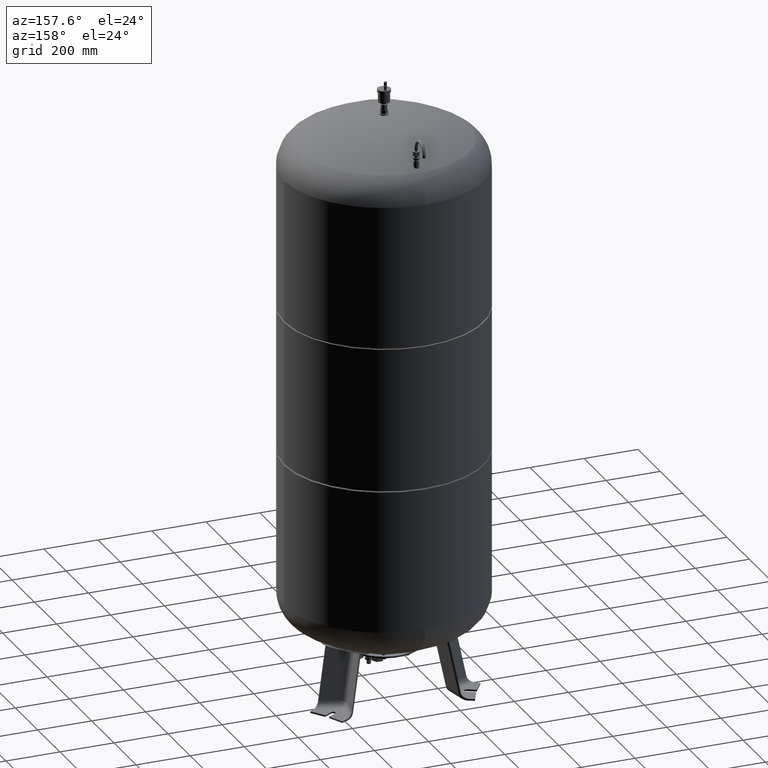
[diagram: clean part render]
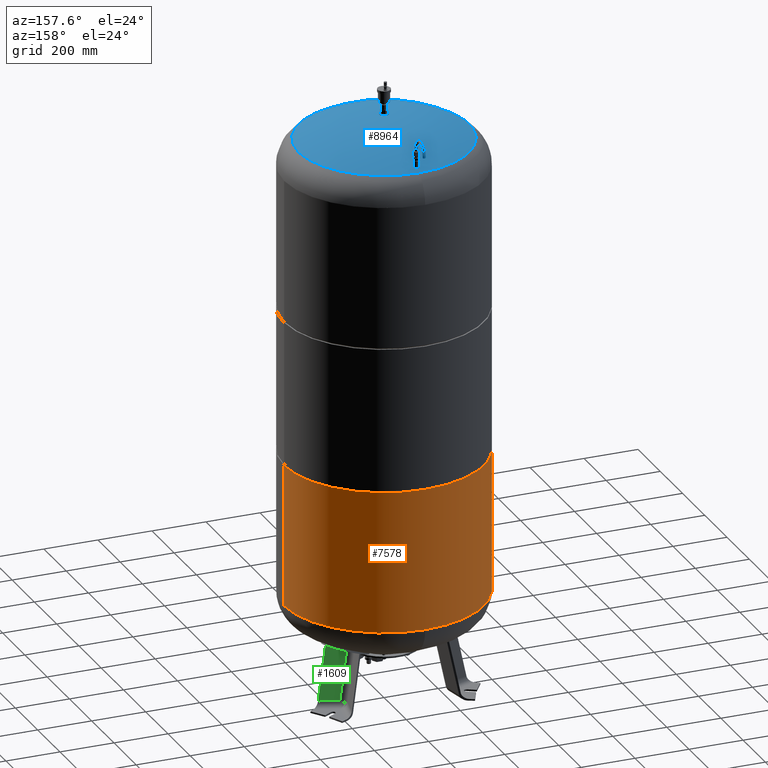
[diagram: same view with three faces highlighted in distinct colors, each labeled with its STEP entity id]
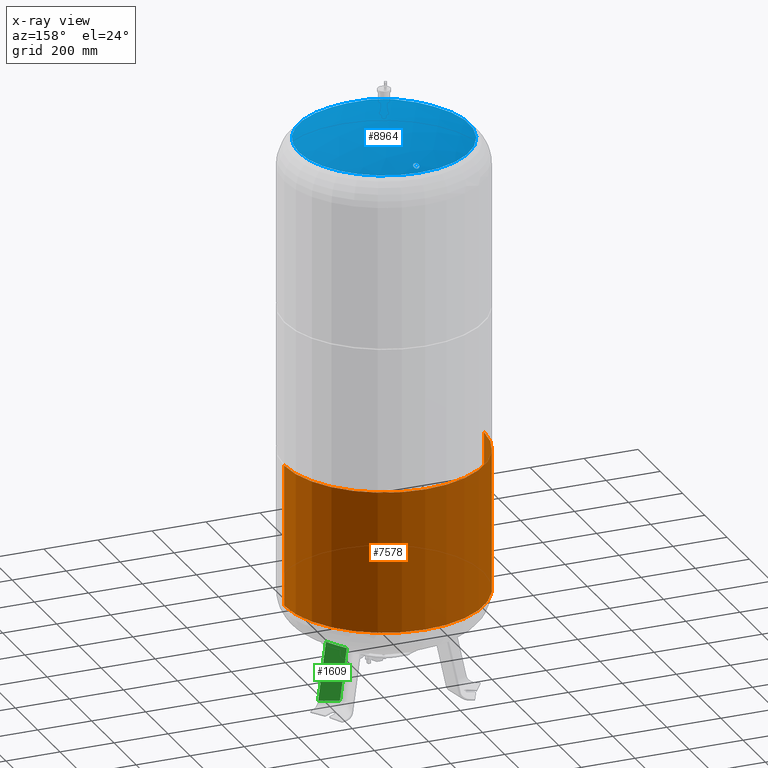
[diagram: x-ray of the same camera — body ghosted, the three highlighted faces saturated]
A machine part, auxiliary view with three faces highlighted in distinct colors.
The next image is the same camera in x-ray (body ghosted, the three faces saturated) — at least one of them is partly hidden behind the body in this view.
Their STEP definitions:

[orange] entity #7578 — the highlighted cylindrical surface (partial cylindrical patch) has radius 370 mm, axis along (0, 0, 1).
#7478=CARTESIAN_POINT('',(370.000000000000230,0.0,894.666666666666520));
#7479=VERTEX_POINT('',#7478);
#7495=CARTESIAN_POINT('',(-370.000000000000060,-4.531044E-014,894.666666666666400));
#7496=VERTEX_POINT('',#7495);
#7518=CARTESIAN_POINT('',(369.999999999999940,0.0,368.999999999999890));
#7519=VERTEX_POINT('',#7518);
#7520=CARTESIAN_POINT('',(370.000000000000230,0.0,894.666666666666520));
#7521=DIRECTION('',(0.0,0.0,-1.0));
#7522=VECTOR('',#7521,525.666666666666630);
#7523=LINE('',#7520,#7522);
#7524=EDGE_CURVE('',#7479,#7519,#7523,.T.);
#7527=CARTESIAN_POINT('',(-370.000000000000060,-4.531044E-014,369.0));
#7528=VERTEX_POINT('',#7527);
#7529=CARTESIAN_POINT('',(-370.000000000000060,-4.531044E-014,894.666666666666400));
#7530=DIRECTION('',(0.0,0.0,-1.0));
#7531=VECTOR('',#7530,525.666666666666400);
#7532=LINE('',#7529,#7531);
#7533=EDGE_CURVE('',#7496,#7528,#7532,.T.);
#7550=CARTESIAN_POINT('',(-1.668796E-014,0.0,369.0));
#7551=DIRECTION('',(0.0,0.0,1.0));
#7552=DIRECTION('',(1.0,0.0,0.0));
#7553=AXIS2_PLACEMENT_3D('',#7550,#7551,#7552);
#7554=CIRCLE('',#7553,369.999999999999940);
#7555=EDGE_CURVE('',#7519,#7528,#7554,.T.);
#7561=CARTESIAN_POINT('',(-1.117772E-014,0.0,631.833333333333030));
#7562=DIRECTION('',(2.096478E-017,0.0,1.0));
#7563=DIRECTION('',(1.0,0.0,0.0));
#7564=AXIS2_PLACEMENT_3D('',#7561,#7562,#7563);
#7565=CYLINDRICAL_SURFACE('',#7564,370.000000000000060);
#7566=ORIENTED_EDGE('',*,*,#7524,.T.);
#7567=ORIENTED_EDGE('',*,*,#7555,.T.);
#7568=ORIENTED_EDGE('',*,*,#7533,.F.);
#7569=CARTESIAN_POINT('',(-5.667479E-015,0.0,894.666666666666400));
#7570=DIRECTION('',(0.0,0.0,1.0));
#7571=DIRECTION('',(1.0,0.0,0.0));
#7572=AXIS2_PLACEMENT_3D('',#7569,#7570,#7571);
#7573=CIRCLE('',#7572,370.000000000000230);
#7574=EDGE_CURVE('',#7479,#7496,#7573,.T.);
#7575=ORIENTED_EDGE('',*,*,#7574,.F.);
#7576=EDGE_LOOP('',(#7566,#7567,#7568,#7575));
#7577=FACE_OUTER_BOUND('',#7576,.T.);
#7578=ADVANCED_FACE('',(#7577),#7565,.T.);

[blue] entity #8964 — the highlighted spherical surface has radius 594 mm.
#8763=CARTESIAN_POINT('',(-1.114251E-014,-315.931034482758610,2059.014494274920300));
#8764=VERTEX_POINT('',#8763);
#8780=CARTESIAN_POINT('',(2.754660E-014,315.931034482758610,2059.014494274920300));
#8781=VERTEX_POINT('',#8780);
#8789=CARTESIAN_POINT('',(315.931034482758610,-1.671377E-014,2059.014494274920300));
#8790=VERTEX_POINT('',#8789);
#8791=CARTESIAN_POINT('',(-1.114251E-014,-1.671377E-014,2059.014494274920300));
#8792=DIRECTION('',(0.0,0.0,-1.0));
#8793=DIRECTION('',(1.0,0.0,0.0));
#8794=AXIS2_PLACEMENT_3D('',#8791,#8792,#8793);
#8795=CIRCLE('',#8794,315.931034482758610);
#8796=EDGE_CURVE('',#8781,#8790,#8795,.T.);
#8798=CARTESIAN_POINT('',(-1.114251E-014,-1.671377E-014,2059.014494274920300));
#8799=DIRECTION('',(0.0,0.0,-1.0));
#8800=DIRECTION('',(1.0,0.0,0.0));
#8801=AXIS2_PLACEMENT_3D('',#8798,#8799,#8800);
#8802=CIRCLE('',#8801,315.931034482758610);
#8803=EDGE_CURVE('',#8790,#8764,#8802,.T.);
#8815=CARTESIAN_POINT('',(-1.426741E-015,300.649999999999980,2068.294424623184600));
#8816=VERTEX_POINT('',#8815);
#8832=CARTESIAN_POINT('',(-1.738477E-015,279.350000000000020,2080.213293898581000));
#8833=VERTEX_POINT('',#8832);
#8840=CARTESIAN_POINT('',(-1.426741E-015,300.649999999999980,2068.294424623184600));
#8841=CARTESIAN_POINT('',(0.664517088266966,300.649999999999980,2068.294424623184600));
#8842=CARTESIAN_POINT('',(1.348109253964791,300.586742816807940,2068.330237396211500));
#8843=CARTESIAN_POINT('',(2.699997526115716,300.325044086684220,2068.478348239149500));
#8844=CARTESIAN_POINT('',(3.368311995923750,300.126673865972800,2068.590604711757800));
#8845=CARTESIAN_POINT('',(4.642225047619459,299.609620017986860,2068.883046385434700));
#8846=CARTESIAN_POINT('',(5.249078569755759,299.290487690306630,2069.063482169014600));
#8847=CARTESIAN_POINT('',(6.365540166833180,298.564221257298130,2069.473827245883500));
#8848=CARTESIAN_POINT('',(6.875165778754454,298.157105848957940,2069.703721915900100));
#8849=CARTESIAN_POINT('',(7.847982860928026,297.235396201609030,2070.223809168565800));
#8850=CARTESIAN_POINT('',(8.329195202777362,296.677378821544890,2070.538447018439900));
#8851=CARTESIAN_POINT('',(9.167633919748026,295.469677227438580,2071.218672395249100));
#8852=CARTESIAN_POINT('',(9.524959682086166,294.820043720028930,2071.584227440323500));
#8853=CARTESIAN_POINT('',(10.094573362227591,293.472357809267690,2072.341702181573100));
#8854=CARTESIAN_POINT('',(10.307217396789019,292.773495712663700,2072.734074588636800));
#8855=CARTESIAN_POINT('',(10.584964209315700,291.374605990228820,2073.518559937688700));
#8856=CARTESIAN_POINT('',(10.650000000000000,290.674568008310080,2073.910678128115700));
#8857=CARTESIAN_POINT('',(10.650000000000000,289.326890933060330,2074.664749724906400));
#8858=CARTESIAN_POINT('',(10.585242166991089,288.627963842796310,2075.055402266440100));
#8859=CARTESIAN_POINT('',(10.308262040270693,287.230601388777020,2075.835532495903000));
#8860=CARTESIAN_POINT('',(10.096100866333323,286.532157118036820,2076.225015928660900));
#8861=CARTESIAN_POINT('',(9.527392653826960,285.184817947542680,2076.975550208299900));
#8862=CARTESIAN_POINT('',(9.170481345050588,284.535105591821660,2077.337058921764800));
#8863=CARTESIAN_POINT('',(8.332742027804864,283.327053926448230,2078.008619632953900));
#8864=CARTESIAN_POINT('',(7.851815066558222,282.768768683924800,2078.318645446750900));
#8865=CARTESIAN_POINT('',(6.878746613494370,281.845830867641440,2078.830806056575100));
#8866=CARTESIAN_POINT('',(6.368501973952601,281.437916940925050,2079.057001015450200));
#8867=CARTESIAN_POINT('',(5.250854218026277,280.710456755459800,2079.460173479165400));
#8868=CARTESIAN_POINT('',(4.643436250791682,280.390929593923540,2079.637144272945100));
#8869=CARTESIAN_POINT('',(3.368640291526728,279.873401441482540,2079.923682600095600));
#8870=CARTESIAN_POINT('',(2.700014877431559,279.674951273003500,2080.033501796580800));
#8871=CARTESIAN_POINT('',(1.347853391049690,279.413215653805140,2080.178326206185800));
#8872=CARTESIAN_POINT('',(0.664299790820504,279.350000000000020,2080.213293898581000));
#8873=CARTESIAN_POINT('',(-1.738477E-015,279.350000000000020,2080.213293898581000));
#8874=B_SPLINE_CURVE_WITH_KNOTS('',3,(#8840,#8841,#8842,#8843,#8844,#8845,#8846,#8847,#8848,#8849,#8850,#8851,#8852,#8853,#8854,#8855,#8856,#8857,#8858,#8859,#8860,#8861,#8862,#8863,#8864,#8865,#8866,#8867,#8868,#8869,#8870,#8871,#8872,#8873),.UNSPECIFIED.,.F.,.U.,(4,2,2,2,2,2,2,2,2,2,2,2,2,2,2,2,4),(0.0,1.993551264800902,3.987102529601803,5.980653794402706,7.974205059203607,10.293160315896881,12.612115572590152,14.931070829283426,17.250026085976700,19.563965955461391,21.877905824946087,24.191845694430782,26.505785563915474,28.498684936376989,30.491584308838508,32.484483681300027,34.477383053761542),.UNSPECIFIED.);
#8875=EDGE_CURVE('',#8816,#8833,#8874,.T.);
#8886=CARTESIAN_POINT('',(-1.738477E-015,279.350000000000020,2080.213293898581000));
#8887=CARTESIAN_POINT('',(-0.664299790820507,279.350000000000020,2080.213293898581000));
#8888=CARTESIAN_POINT('',(-1.347853391049694,279.413215653805140,2080.178326206185800));
#8889=CARTESIAN_POINT('',(-2.700014877431564,279.674951273003500,2080.033501796580800));
#8890=CARTESIAN_POINT('',(-3.368640291526734,279.873401441482540,2079.923682600095600));
#8891=CARTESIAN_POINT('',(-4.643436250791682,280.390929593923540,2079.637144272945100));
#8892=CARTESIAN_POINT('',(-5.250854218026280,280.710456755459800,2079.460173479165400));
#8893=CARTESIAN_POINT('',(-6.368501973952598,281.437916940925050,2079.057001015450200));
#8894=CARTESIAN_POINT('',(-6.878746613494377,281.845830867641440,2078.830806056575500));
#8895=CARTESIAN_POINT('',(-7.851815066558236,282.768768683924800,2078.318645446750900));
#8896=CARTESIAN_POINT('',(-8.332742027804892,283.327053926448290,2078.008619632953900));
#8897=CARTESIAN_POINT('',(-9.170481345050627,284.535105591821720,2077.337058921764800));
#8898=CARTESIAN_POINT('',(-9.527392653826961,285.184817947542680,2076.975550208299900));
#8899=CARTESIAN_POINT('',(-10.096100866333327,286.532157118036820,2076.225015928660900));
#8900=CARTESIAN_POINT('',(-10.308262040270678,287.230601388776850,2075.835532495903000));
#8901=CARTESIAN_POINT('',(-10.585242166991081,288.627963842796130,2075.055402266440100));
#8902=CARTESIAN_POINT('',(-10.650000000000004,289.326890933060330,2074.664749724906400));
#8903=CARTESIAN_POINT('',(-10.650000000000004,290.674568008310080,2073.910678128115700));
#8904=CARTESIAN_POINT('',(-10.584964209315713,291.374605990228760,2073.518559937688700));
#8905=CARTESIAN_POINT('',(-10.307217396789024,292.773495712663700,2072.734074588636800));
#8906=CARTESIAN_POINT('',(-10.094573362227585,293.472357809267750,2072.341702181573100));
#8907=CARTESIAN_POINT('',(-9.524959682086173,294.820043720028880,2071.584227440323500));
#8908=CARTESIAN_POINT('',(-9.167633919748015,295.469677227438640,2071.218672395249100));
#8909=CARTESIAN_POINT('',(-8.329195202777386,296.677378821544830,2070.538447018439900));
#8910=CARTESIAN_POINT('',(-7.847982860928025,297.235396201608980,2070.223809168565800));
#8911=CARTESIAN_POINT('',(-6.875165778754459,298.157105848957830,2069.703721915900100));
#8912=CARTESIAN_POINT('',(-6.365540166833259,298.564221257298070,2069.473827245883500));
#8913=CARTESIAN_POINT('',(-5.249078569755819,299.290487690306580,2069.063482169014600));
#8914=CARTESIAN_POINT('',(-4.642225047619510,299.609620017986860,2068.883046385434700));
#8915=CARTESIAN_POINT('',(-3.368311995923790,300.126673865972860,2068.590604711757800));
#8916=CARTESIAN_POINT('',(-2.699997526115732,300.325044086684220,2068.478348239149500));
#8917=CARTESIAN_POINT('',(-1.348109253964804,300.586742816807940,2068.330237396211500));
#8918=CARTESIAN_POINT('',(-0.664517088266972,300.649999999999980,2068.294424623184600));
#8919=CARTESIAN_POINT('',(-1.426741E-015,300.649999999999980,2068.294424623184600));
#8920=B_SPLINE_CURVE_WITH_KNOTS('',3,(#8886,#8887,#8888,#8889,#8890,#8891,#8892,#8893,#8894,#8895,#8896,#8897,#8898,#8899,#8900,#8901,#8902,#8903,#8904,#8905,#8906,#8907,#8908,#8909,#8910,#8911,#8912,#8913,#8914,#8915,#8916,#8917,#8918,#8919),.UNSPECIFIED.,.F.,.U.,(4,2,2,2,2,2,2,2,2,2,2,2,2,2,2,2,4),(34.477383053761542,36.470282426223058,38.463181798684573,40.456081171146081,42.448980543607597,44.762920413092303,47.076860282577016,49.390800152061722,51.704740021546428,54.023695278239678,56.342650534932929,58.661605791626172,60.980561048319423,62.974112313120344,64.967663577921257,66.961214842722171,68.954766107523085),.UNSPECIFIED.);
#8921=EDGE_CURVE('',#8833,#8816,#8920,.T.);
#8944=CARTESIAN_POINT('',(-7.274402E-014,-1.091160E-013,1556.0));
#8945=DIRECTION('',(0.0,-1.0,0.0));
#8946=DIRECTION('',(-1.0,0.0,0.0));
#8947=AXIS2_PLACEMENT_3D('',#8944,#8945,#8946);
#8948=SPHERICAL_SURFACE('',#8947,594.0);
#8949=ORIENTED_EDGE('',*,*,#8875,.T.);
#8950=ORIENTED_EDGE('',*,*,#8921,.T.);
#8951=EDGE_LOOP('',(#8949,#8950));
#8952=FACE_OUTER_BOUND('',#8951,.T.);
#8953=ORIENTED_EDGE('',*,*,#8803,.F.);
#8954=ORIENTED_EDGE('',*,*,#8796,.F.);
#8955=CARTESIAN_POINT('',(-1.114251E-014,-1.671377E-014,2059.014494274920300));
#8956=DIRECTION('',(0.0,0.0,-1.0));
#8957=DIRECTION('',(1.0,0.0,0.0));
#8958=AXIS2_PLACEMENT_3D('',#8955,#8956,#8957);
#8959=CIRCLE('',#8958,315.931034482758610);
#8960=EDGE_CURVE('',#8764,#8781,#8959,.T.);
#8961=ORIENTED_EDGE('',*,*,#8960,.F.);
#8962=EDGE_LOOP('',(#8953,#8954,#8961));
#8963=FACE_BOUND('',#8962,.T.);
#8964=ADVANCED_FACE('',(#8952,#8963),#8948,.T.);

[green] entity #1609 — the highlighted planar face has unit normal (0.3243, 0.9325, 0.1588).
#1239=CARTESIAN_POINT('',(203.897970942220720,99.087779953756780,27.029948423057292));
#1240=VERTEX_POINT('',#1239);
#1312=CARTESIAN_POINT('',(170.344666907117190,79.715770836888353,209.306223167677190));
#1313=VERTEX_POINT('',#1312);
#1394=CARTESIAN_POINT('',(236.757770730876760,52.586239383479921,233.000000000000030));
#1395=VERTEX_POINT('',#1394);
#1403=CARTESIAN_POINT('',(170.344666907117190,79.715770836888353,209.306223167677190));
#1404=CARTESIAN_POINT('',(172.361756306383140,78.911315232764395,209.911227339780880));
#1405=CARTESIAN_POINT('',(174.379511752188250,78.104589287404181,210.528203562929860));
#1406=CARTESIAN_POINT('',(183.208078527320790,74.566467202668491,213.276729921399890));
#1407=CARTESIAN_POINT('',(190.025567566105390,71.812748058212591,215.525731482895940));
#1408=CARTESIAN_POINT('',(210.166153264246620,63.620194625736048,222.506751583386570));
#1409=CARTESIAN_POINT('',(223.492076462663390,58.125701223915712,227.559845947390160));
#1410=CARTESIAN_POINT('',(236.757770730876760,52.586239383479921,233.000000000000030));
#1411=B_SPLINE_CURVE_WITH_KNOTS('',3,(#1403,#1404,#1405,#1406,#1407,#1408,#1409,#1410),.UNSPECIFIED.,.F.,.U.,(4,2,2,4),(5.937335443723129,6.588195328792665,8.784260438390220,13.073486937020286),.UNSPECIFIED.);
#1412=EDGE_CURVE('',#1313,#1395,#1411,.T.);
#1567=CARTESIAN_POINT('',(170.344666907117190,79.715770836888353,209.306223167677190));
#1568=DIRECTION('',(0.180056805991956,0.103955845408880,-0.978147600733805));
#1569=VECTOR('',#1568,186.348435152196260);
#1570=LINE('',#1567,#1569);
#1571=EDGE_CURVE('',#1313,#1240,#1570,.T.);
#1586=CARTESIAN_POINT('',(201.200799330712950,116.163335654754970,-67.735293817669458));
#1587=DIRECTION('',(0.324282864533177,0.932535537409927,0.158802063077708));
#1588=DIRECTION('',(-0.180056805991956,-0.103955845408880,0.978147600733806));
#1589=AXIS2_PLACEMENT_3D('',#1586,#1587,#1588);
#1590=PLANE('',#1589);
#1591=CARTESIAN_POINT('',(274.672610566010690,74.476382368576026,27.029948423057292));
#1592=VERTEX_POINT('',#1591);
#1593=CARTESIAN_POINT('',(274.672610566010690,74.476382368576026,27.029948423057292));
#1594=DIRECTION('',(-0.180056805991956,-0.103955845408880,0.978147600733805));
#1595=VECTOR('',#1594,210.571545053552460);
#1596=LINE('',#1593,#1595);
#1597=EDGE_CURVE('',#1592,#1395,#1596,.T.);
#1598=ORIENTED_EDGE('',*,*,#1597,.F.);
#1599=CARTESIAN_POINT('',(203.897970942220720,99.087779953756780,27.029948423057292));
#1600=DIRECTION('',(0.944521094592692,-0.328450760190053,0.0));
#1601=VECTOR('',#1600,74.931772333057637);
#1602=LINE('',#1599,#1601);
#1603=EDGE_CURVE('',#1240,#1592,#1602,.T.);
#1604=ORIENTED_EDGE('',*,*,#1603,.F.);
#1605=ORIENTED_EDGE('',*,*,#1571,.F.);
#1606=ORIENTED_EDGE('',*,*,#1412,.T.);
#1607=EDGE_LOOP('',(#1598,#1604,#1605,#1606));
#1608=FACE_OUTER_BOUND('',#1607,.T.);
#1609=ADVANCED_FACE('',(#1608),#1590,.T.);